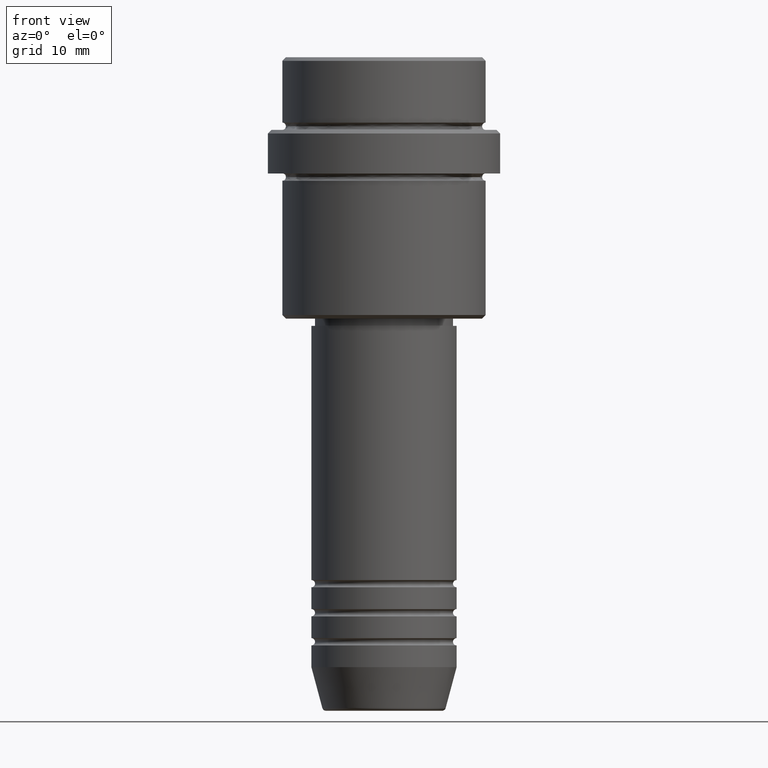
[diagram: clean part render]
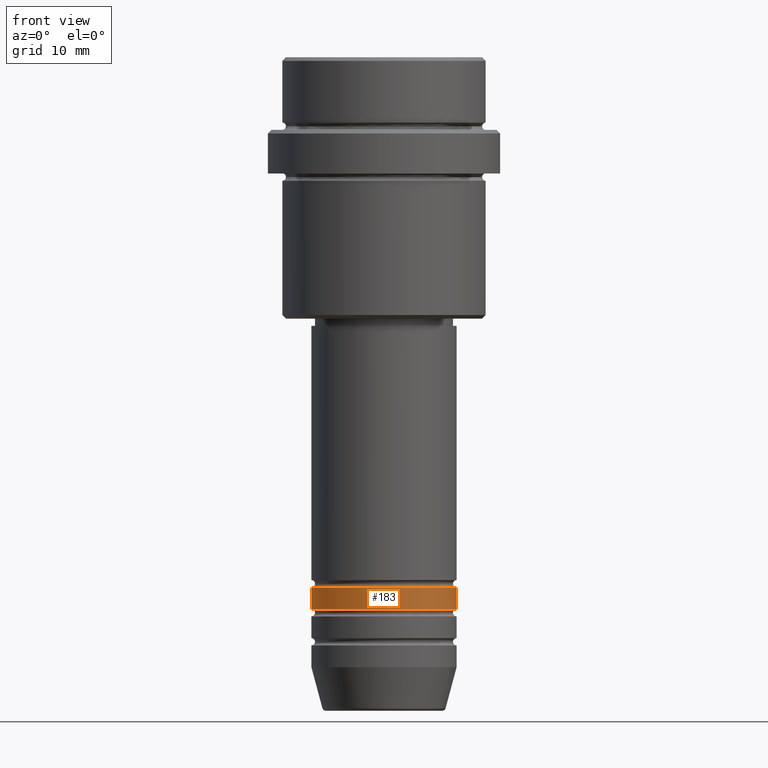
[diagram: same view with one face highlighted and labeled with its STEP entity id]
A machine part, front view. The second image highlights one B-rep face of the part: STEP entity #183.
In plain terms, the highlighted cylindrical surface (partial cylindrical patch) has radius 10 mm, axis along (-0, -0, 1).
Its self-contained STEP definition (entity closure, byte-faithful):
#48 = DIRECTION ( 'NONE',  ( 1.000000000000000000, 0.000000000000000000, 0.000000000000000000 ) ) ;
#162 = EDGE_CURVE ( 'NONE', #1240, #1169, #478, .T. ) ;
#163 = CARTESIAN_POINT ( 'NONE',  ( -10.00000000000000000, 1.224646799147353256E-15, 0.000000000000000000 ) ) ;
#183 = ADVANCED_FACE ( 'NONE', ( #473 ), #606, .T. ) ;
#313 = EDGE_CURVE ( 'NONE', #1240, #499, #903, .T. ) ;
#360 = CARTESIAN_POINT ( 'NONE',  ( 10.00000000000000000, 0.000000000000000000, 0.000000000000000000 ) ) ;
#375 = LINE ( 'NONE', #360, #1264 ) ;
#382 = CARTESIAN_POINT ( 'NONE',  ( 0.000000000000000000, 0.000000000000000000, -75.99999999999988631 ) ) ;
#385 = CARTESIAN_POINT ( 'NONE',  ( -10.00000000000000000, 1.224646799147353256E-15, -72.99999999999990052 ) ) ;
#442 = CARTESIAN_POINT ( 'NONE',  ( -10.00000000000000000, 1.224646799147353256E-15, -75.99999999999988631 ) ) ;
#457 = CIRCLE ( 'NONE', #553, 10.00000000000000000 ) ;
#464 = ORIENTED_EDGE ( 'NONE', *, *, #313, .F. ) ;
#473 = FACE_OUTER_BOUND ( 'NONE', #1085, .T. ) ;
#478 = CIRCLE ( 'NONE', #1329, 10.00000000000000000 ) ;
#499 = VERTEX_POINT ( 'NONE', #385 ) ;
#535 = DIRECTION ( 'NONE',  ( -0.000000000000000000, -0.000000000000000000, 1.000000000000000000 ) ) ;
#542 = CARTESIAN_POINT ( 'NONE',  ( 10.00000000000000000, 0.000000000000000000, -72.99999999999990052 ) ) ;
#547 = CARTESIAN_POINT ( 'NONE',  ( 0.000000000000000000, 0.000000000000000000, -72.99999999999990052 ) ) ;
#549 = VECTOR ( 'NONE', #834, 1000.000000000000000 ) ;
#553 = AXIS2_PLACEMENT_3D ( 'NONE', #547, #535, #678 ) ;
#597 = CARTESIAN_POINT ( 'NONE',  ( 0.000000000000000000, 0.000000000000000000, 0.000000000000000000 ) ) ;
#606 = CYLINDRICAL_SURFACE ( 'NONE', #1071, 10.00000000000000000 ) ;
#678 = DIRECTION ( 'NONE',  ( 1.000000000000000000, 0.000000000000000000, 0.000000000000000000 ) ) ;
#688 = ORIENTED_EDGE ( 'NONE', *, *, #162, .T. ) ;
#707 = DIRECTION ( 'NONE',  ( -0.000000000000000000, -0.000000000000000000, 1.000000000000000000 ) ) ;
#792 = VERTEX_POINT ( 'NONE', #542 ) ;
#834 = DIRECTION ( 'NONE',  ( -0.000000000000000000, -0.000000000000000000, 1.000000000000000000 ) ) ;
#903 = LINE ( 'NONE', #163, #549 ) ;
#924 = DIRECTION ( 'NONE',  ( -0.000000000000000000, -0.000000000000000000, 1.000000000000000000 ) ) ;
#1013 = EDGE_CURVE ( 'NONE', #499, #792, #457, .T. ) ;
#1044 = CARTESIAN_POINT ( 'NONE',  ( 10.00000000000000000, 0.000000000000000000, -75.99999999999988631 ) ) ;
#1058 = EDGE_CURVE ( 'NONE', #1169, #792, #375, .T. ) ;
#1064 = ORIENTED_EDGE ( 'NONE', *, *, #1058, .T. ) ;
#1071 = AXIS2_PLACEMENT_3D ( 'NONE', #597, #1113, #1246 ) ;
#1085 = EDGE_LOOP ( 'NONE', ( #464, #688, #1064, #1294 ) ) ;
#1113 = DIRECTION ( 'NONE',  ( -0.000000000000000000, -0.000000000000000000, 1.000000000000000000 ) ) ;
#1169 = VERTEX_POINT ( 'NONE', #1044 ) ;
#1240 = VERTEX_POINT ( 'NONE', #442 ) ;
#1246 = DIRECTION ( 'NONE',  ( 1.000000000000000000, 0.000000000000000000, 0.000000000000000000 ) ) ;
#1264 = VECTOR ( 'NONE', #707, 1000.000000000000000 ) ;
#1294 = ORIENTED_EDGE ( 'NONE', *, *, #1013, .F. ) ;
#1329 = AXIS2_PLACEMENT_3D ( 'NONE', #382, #924, #48 ) ;